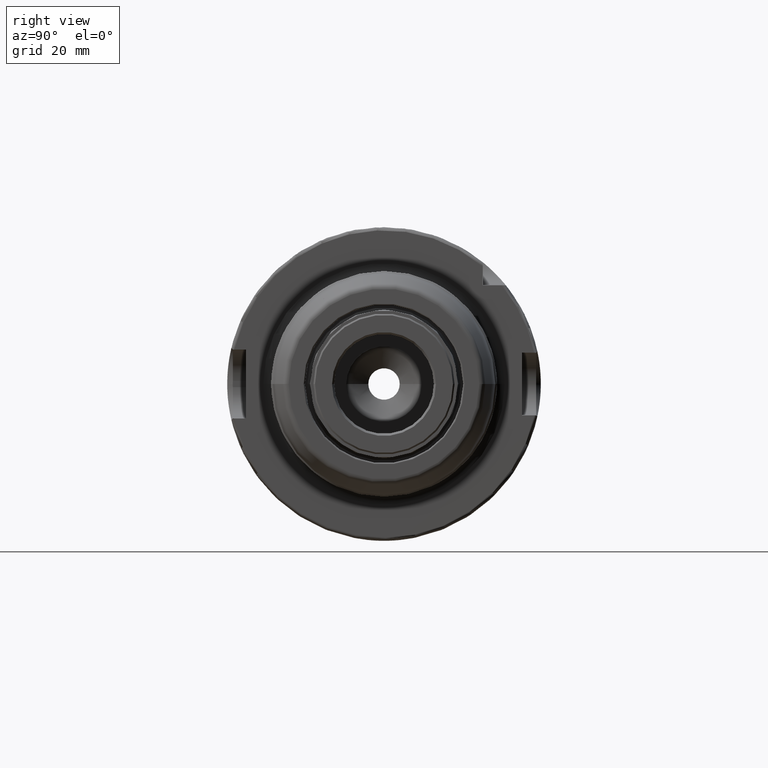
[diagram: clean part render]
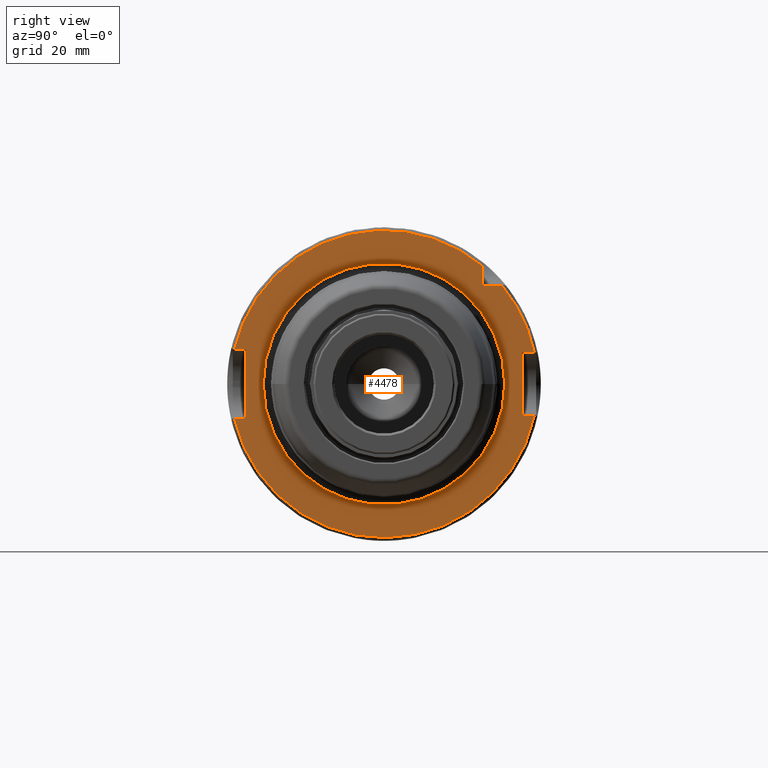
[diagram: same view with one face highlighted and labeled with its STEP entity id]
A machine part, right view. The second image highlights one B-rep face of the part: STEP entity #4478.
In plain terms, the highlighted planar face has unit normal (1, 0, 0).
Its self-contained STEP definition (entity closure, byte-faithful):
#1092=DIRECTION('',(0.E0,1.E0,0.E0));
#1093=VECTOR('',#1092,1.476120293407E-1);
#1094=CARTESIAN_POINT('',(1.141732283465E0,-1.879895493908E0,
-4.330708661417E-1));
#1095=LINE('',#1094,#1093);
#1096=DIRECTION('',(0.E0,0.E0,1.E0));
#1097=VECTOR('',#1096,8.661417322835E-1);
#1098=CARTESIAN_POINT('',(1.141732283465E0,-1.732283464567E0,
-4.330708661417E-1));
#1099=LINE('',#1098,#1097);
#1100=DIRECTION('',(0.E0,1.E0,0.E0));
#1101=VECTOR('',#1100,1.476120293407E-1);
#1102=CARTESIAN_POINT('',(1.141732283465E0,-1.879895493908E0,
4.330708661417E-1));
#1103=LINE('',#1102,#1101);
#1104=DIRECTION('',(0.E0,0.E0,-1.E0));
#1105=VECTOR('',#1104,2.375322256564E-1);
#1106=CARTESIAN_POINT('',(1.141732283465E0,1.240157480315E0,1.477689705971E0));
#1107=LINE('',#1106,#1105);
#1108=DIRECTION('',(0.E0,-1.E0,0.E0));
#1109=VECTOR('',#1108,2.375322256564E-1);
#1110=CARTESIAN_POINT('',(1.141732283465E0,1.477689705971E0,1.240157480315E0));
#1111=LINE('',#1110,#1109);
#1112=DIRECTION('',(0.E0,-1.E0,0.E0));
#1113=VECTOR('',#1112,1.562495992459E-1);
#1114=CARTESIAN_POINT('',(1.141732283465E0,1.888533063813E0,3.937007874016E-1));
#1115=LINE('',#1114,#1113);
#1116=DIRECTION('',(0.E0,0.E0,-1.E0));
#1117=VECTOR('',#1116,7.874015748031E-1);
#1118=CARTESIAN_POINT('',(1.141732283465E0,1.732283464567E0,3.937007874016E-1));
#1119=LINE('',#1118,#1117);
#1120=DIRECTION('',(0.E0,-1.E0,0.E0));
#1121=VECTOR('',#1120,1.562495992459E-1);
#1122=CARTESIAN_POINT('',(1.141732283465E0,1.888533063813E0,
-3.937007874016E-1));
#1123=LINE('',#1122,#1121);
#1124=CARTESIAN_POINT('',(1.141732283465E0,0.E0,0.E0));
#1125=DIRECTION('',(1.E0,0.E0,0.E0));
#1126=DIRECTION('',(0.E0,-1.E0,0.E0));
#1127=AXIS2_PLACEMENT_3D('',#1124,#1125,#1126);
#1129=CARTESIAN_POINT('',(1.141732283465E0,0.E0,0.E0));
#1130=DIRECTION('',(1.E0,0.E0,0.E0));
#1131=DIRECTION('',(0.E0,1.E0,0.E0));
#1132=AXIS2_PLACEMENT_3D('',#1129,#1130,#1131);
#1139=CARTESIAN_POINT('',(1.141732283465E0,0.E0,0.E0));
#1140=DIRECTION('',(1.E0,0.E0,0.E0));
#1141=DIRECTION('',(0.E0,-9.744764396990E-1,-2.244897959184E-1));
#1142=AXIS2_PLACEMENT_3D('',#1139,#1140,#1141);
#2170=CARTESIAN_POINT('',(1.141732283465E0,1.888533063813E0,
-3.937007874016E-1));
#2205=CARTESIAN_POINT('',(1.141732283465E0,1.888533063813E0,3.937007874016E-1));
#2224=CARTESIAN_POINT('',(1.141732283465E0,0.E0,0.E0));
#2225=DIRECTION('',(1.E0,0.E0,0.E0));
#2226=DIRECTION('',(0.E0,9.789538738948E-1,2.040816326531E-1));
#2227=AXIS2_PLACEMENT_3D('',#2224,#2225,#2226);
#2229=CARTESIAN_POINT('',(1.141732283465E0,1.477689705971E0,1.240157480315E0));
#2245=CARTESIAN_POINT('',(1.141732283465E0,1.240157480315E0,1.477689705971E0));
#2261=CARTESIAN_POINT('',(1.141732283465E0,0.E0,0.E0));
#2262=DIRECTION('',(1.E0,0.E0,0.E0));
#2263=DIRECTION('',(0.E0,6.428571428571E-1,7.659860924831E-1));
#2264=AXIS2_PLACEMENT_3D('',#2261,#2262,#2263);
#2266=CARTESIAN_POINT('',(1.141732283465E0,-1.879895493908E0,
4.330708661417E-1));
#2456=CARTESIAN_POINT('',(1.141732283465E0,-1.879895493908E0,
-4.330708661417E-1));
#2676=CARTESIAN_POINT('',(1.141732283465E0,1.732283464567E0,3.937007874016E-1));
#2677=CARTESIAN_POINT('',(1.141732283465E0,1.732283464567E0,
-3.937007874016E-1));
#2678=VERTEX_POINT('',#2676);
#2679=VERTEX_POINT('',#2677);
#2700=CARTESIAN_POINT('',(1.141732283465E0,-1.732283464567E0,
-4.330708661417E-1));
#2701=CARTESIAN_POINT('',(1.141732283465E0,-1.732283464567E0,
4.330708661417E-1));
#2702=VERTEX_POINT('',#2700);
#2703=VERTEX_POINT('',#2701);
#2754=CARTESIAN_POINT('',(1.141732283465E0,1.240157480315E0,1.240157480315E0));
#2756=VERTEX_POINT('',#2754);
#2981=VERTEX_POINT('',#2456);
#2982=VERTEX_POINT('',#2170);
#2987=VERTEX_POINT('',#2205);
#2988=VERTEX_POINT('',#2229);
#2991=VERTEX_POINT('',#2245);
#2992=VERTEX_POINT('',#2266);
#3063=CARTESIAN_POINT('',(1.141732283465E0,-1.516E0,0.E0));
#3064=CARTESIAN_POINT('',(1.141732283465E0,1.516E0,0.E0));
#3065=VERTEX_POINT('',#3063);
#3066=VERTEX_POINT('',#3064);
#4444=CARTESIAN_POINT('',(1.141732283465E0,0.E0,0.E0));
#4445=DIRECTION('',(1.E0,0.E0,0.E0));
#4446=DIRECTION('',(0.E0,0.E0,1.E0));
#4447=AXIS2_PLACEMENT_3D('',#4444,#4445,#4446);
#4448=PLANE('',#4447);
#4450=ORIENTED_EDGE('',*,*,#4449,.F.);
#4452=ORIENTED_EDGE('',*,*,#4451,.T.);
#4454=ORIENTED_EDGE('',*,*,#4453,.T.);
#4456=ORIENTED_EDGE('',*,*,#4455,.F.);
#4458=ORIENTED_EDGE('',*,*,#4457,.F.);
#4460=ORIENTED_EDGE('',*,*,#4459,.T.);
#4462=ORIENTED_EDGE('',*,*,#4461,.F.);
#4464=ORIENTED_EDGE('',*,*,#4463,.F.);
#4466=ORIENTED_EDGE('',*,*,#4465,.T.);
#4468=ORIENTED_EDGE('',*,*,#4467,.T.);
#4470=ORIENTED_EDGE('',*,*,#4469,.F.);
#4471=EDGE_LOOP('',(#4450,#4452,#4454,#4456,#4458,#4460,#4462,#4464,#4466,#4468,
#4470));
#4472=FACE_OUTER_BOUND('',#4471,.F.);
#4474=ORIENTED_EDGE('',*,*,#4473,.T.);
#4475=ORIENTED_EDGE('',*,*,#4434,.T.);
#4476=EDGE_LOOP('',(#4474,#4475));
#4477=FACE_BOUND('',#4476,.F.);
#4478=ADVANCED_FACE('',(#4472,#4477),#4448,.T.);
#1128=CIRCLE('',#1127,1.516E0);
#1133=CIRCLE('',#1132,1.516E0);
#1143=CIRCLE('',#1142,1.929133858268E0);
#2228=CIRCLE('',#2227,1.929133858268E0);
#2265=CIRCLE('',#2264,1.929133858268E0);
#4434=EDGE_CURVE('',#3066,#3065,#1133,.T.);
#4449=EDGE_CURVE('',#2981,#2982,#1143,.T.);
#4451=EDGE_CURVE('',#2981,#2702,#1095,.T.);
#4453=EDGE_CURVE('',#2702,#2703,#1099,.T.);
#4455=EDGE_CURVE('',#2992,#2703,#1103,.T.);
#4457=EDGE_CURVE('',#2991,#2992,#2265,.T.);
#4459=EDGE_CURVE('',#2991,#2756,#1107,.T.);
#4461=EDGE_CURVE('',#2988,#2756,#1111,.T.);
#4463=EDGE_CURVE('',#2987,#2988,#2228,.T.);
#4465=EDGE_CURVE('',#2987,#2678,#1115,.T.);
#4467=EDGE_CURVE('',#2678,#2679,#1119,.T.);
#4469=EDGE_CURVE('',#2982,#2679,#1123,.T.);
#4473=EDGE_CURVE('',#3065,#3066,#1128,.T.);